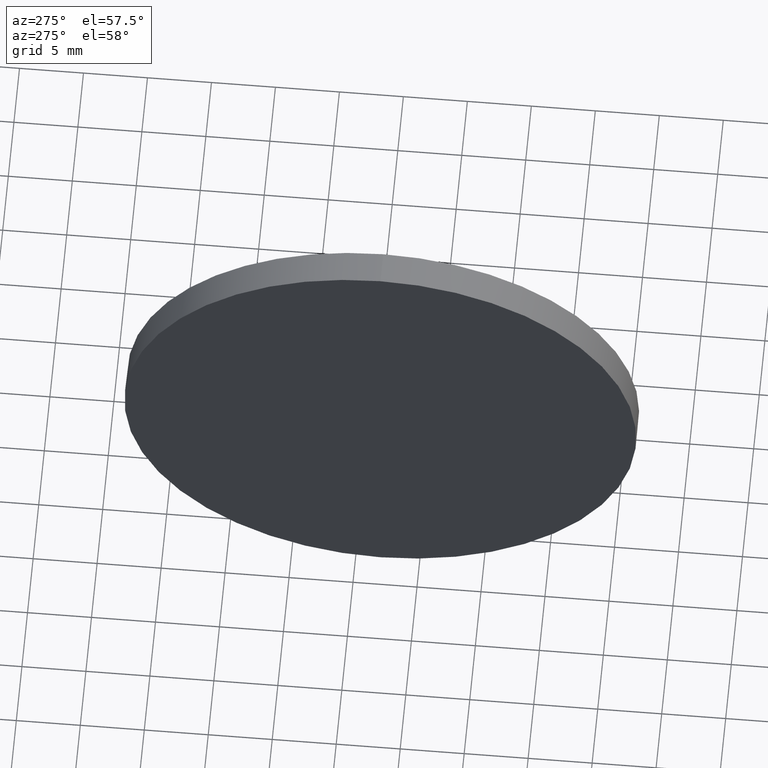
[diagram: clean part render]
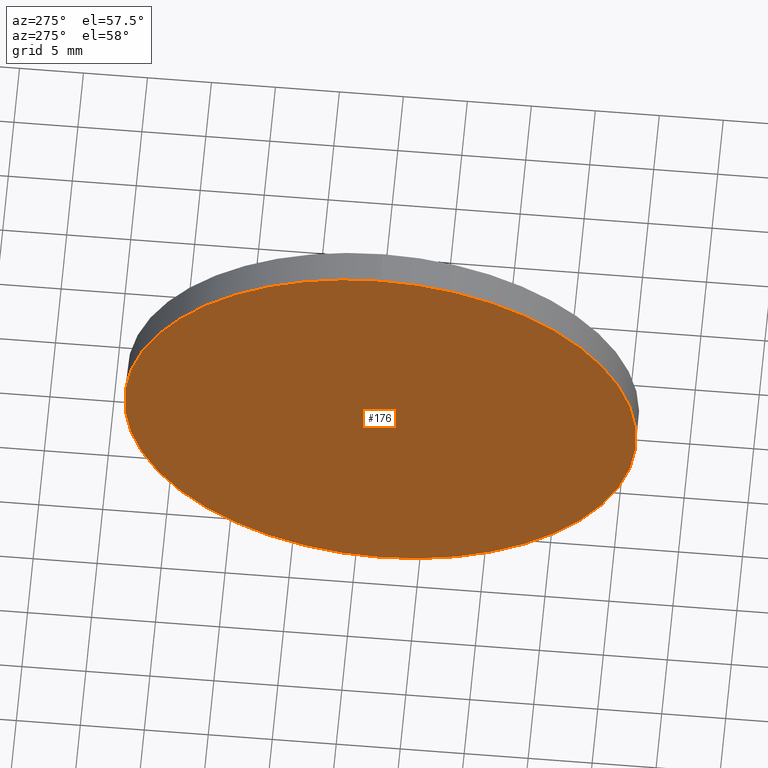
[diagram: same view with one face highlighted and labeled with its STEP entity id]
A machine part, auxiliary view. The second image highlights one B-rep face of the part: STEP entity #176.
In plain terms, the highlighted planar face has unit normal (1, 0, 0).
Its self-contained STEP definition (entity closure, byte-faithful):
#1 = EDGE_CURVE ( 'NONE', #98, #41, #87, .T. ) ;
#4 = DIRECTION ( 'NONE',  ( -1.000000000000000000, -0.0000000000000000000, -0.0000000000000000000 ) ) ;
#6 = ORIENTED_EDGE ( 'NONE', *, *, #1, .T. ) ;
#26 = EDGE_LOOP ( 'NONE', ( #55, #6 ) ) ;
#34 = DIRECTION ( 'NONE',  ( 0.0000000000000000000, 0.0000000000000000000, 1.000000000000000000 ) ) ;
#41 = VERTEX_POINT ( 'NONE', #74 ) ;
#51 = FACE_OUTER_BOUND ( 'NONE', #26, .T. ) ;
#55 = ORIENTED_EDGE ( 'NONE', *, *, #155, .T. ) ;
#60 = CARTESIAN_POINT ( 'NONE',  ( 496.9433268936313700, 28.03450689245858400, -20.00000000000000400 ) ) ;
#63 = CARTESIAN_POINT ( 'NONE',  ( 496.9433268936313700, 28.03450689245858000, 0.0000000000000000000 ) ) ;
#65 = DIRECTION ( 'NONE',  ( 1.000000000000000000, 0.0000000000000000000, 0.0000000000000000000 ) ) ;
#66 = DIRECTION ( 'NONE',  ( -1.000000000000000000, -0.0000000000000000000, -0.0000000000000000000 ) ) ;
#72 = CARTESIAN_POINT ( 'NONE',  ( 496.9433268936313700, 28.03450689245858000, 0.0000000000000000000 ) ) ;
#74 = CARTESIAN_POINT ( 'NONE',  ( 496.9433268936313700, 28.03450689245858000, 20.00000000000000400 ) ) ;
#79 = CIRCLE ( 'NONE', #158, 20.00000000000000400 ) ;
#87 = CIRCLE ( 'NONE', #162, 20.00000000000000400 ) ;
#92 = AXIS2_PLACEMENT_3D ( 'NONE', #182, #65, #181 ) ;
#98 = VERTEX_POINT ( 'NONE', #60 ) ;
#155 = EDGE_CURVE ( 'NONE', #41, #98, #79, .T. ) ;
#158 = AXIS2_PLACEMENT_3D ( 'NONE', #63, #66, #34 ) ;
#162 = AXIS2_PLACEMENT_3D ( 'NONE', #72, #4, #179 ) ;
#166 = PLANE ( 'NONE',  #92 ) ;
#176 = ADVANCED_FACE ( 'NONE', ( #51 ), #166, .F. ) ;
#179 = DIRECTION ( 'NONE',  ( 0.0000000000000000000, 0.0000000000000000000, 1.000000000000000000 ) ) ;
#181 = DIRECTION ( 'NONE',  ( 0.0000000000000000000, 0.0000000000000000000, -1.000000000000000000 ) ) ;
#182 = CARTESIAN_POINT ( 'NONE',  ( 496.9433268936313700, 28.03450689245858000, 0.0000000000000000000 ) ) ;